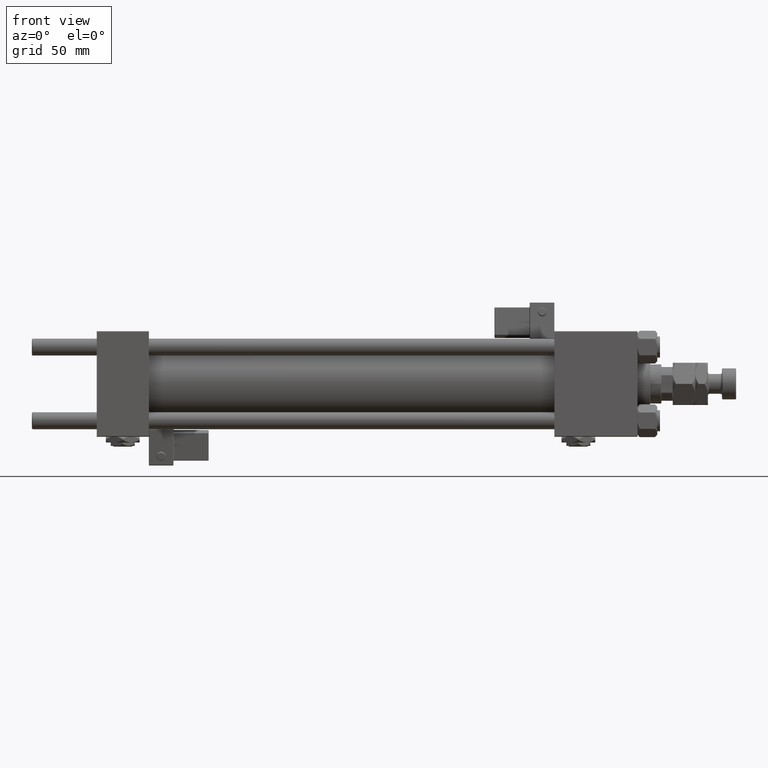
[diagram: clean part render]
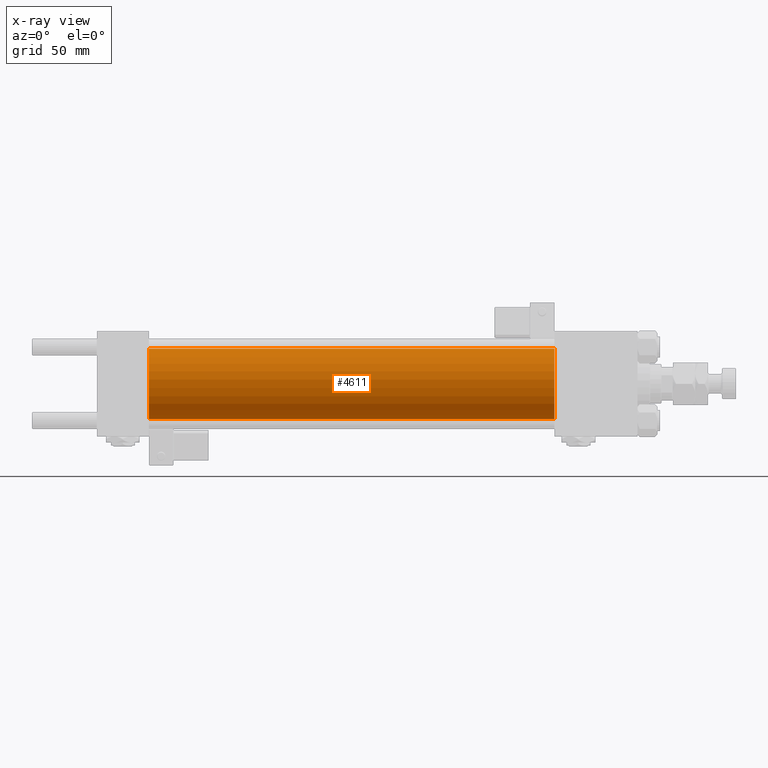
[diagram: x-ray — body ghosted, one internal face saturated and labeled with its STEP entity id]
A machine part, front view, then the same camera in x-ray: the body is ghosted and one INTERNAL B-rep face — a face not visible from any outside direction — is saturated and labeled: STEP entity #4611.
In plain terms, the highlighted cylindrical surface (edge-blend (fillet) strip) has radius 25 mm, axis along (-1, -0, -0).
Its self-contained STEP definition (entity closure, byte-faithful):
#1871 = EDGE_LOOP ( 'NONE', ( #52751, #29552, #13907, #3057 ) ) ;
#2317 = DIRECTION ( 'NONE',  ( 1.000000000000000000, 0.000000000000000000, 0.000000000000000000 ) ) ;
#3057 = ORIENTED_EDGE ( 'NONE', *, *, #50995, .F. ) ;
#4414 = VERTEX_POINT ( 'NONE', #21471 ) ;
#4461 = LINE ( 'NONE', #55397, #28727 ) ;
#4611 = ADVANCED_FACE ( 'NONE', ( #27352 ), #5129, .F. ) ;
#5129 = CYLINDRICAL_SURFACE ( 'NONE', #7177, 25.00000000000000000 ) ;
#6607 = CARTESIAN_POINT ( 'NONE',  ( 37.00000000000000000, 3.061616997868383043E-15, -25.00000000000000000 ) ) ;
#7177 = AXIS2_PLACEMENT_3D ( 'NONE', #30730, #30458, #23146 ) ;
#10334 = CARTESIAN_POINT ( 'NONE',  ( 324.9999999999999432, 0.000000000000000000, 25.00000000000000000 ) ) ;
#10579 = VERTEX_POINT ( 'NONE', #6607 ) ;
#13907 = ORIENTED_EDGE ( 'NONE', *, *, #18802, .F. ) ;
#14962 = LINE ( 'NONE', #15496, #21205 ) ;
#15496 = CARTESIAN_POINT ( 'NONE',  ( 324.9999999999999432, 0.000000000000000000, 25.00000000000000000 ) ) ;
#15810 = EDGE_CURVE ( 'NONE', #51731, #10579, #4461, .T. ) ;
#18802 = EDGE_CURVE ( 'NONE', #4414, #10579, #18996, .T. ) ;
#18996 = CIRCLE ( 'NONE', #26162, 25.00000000000000000 ) ;
#21205 = VECTOR ( 'NONE', #45833, 1000.000000000000000 ) ;
#21471 = CARTESIAN_POINT ( 'NONE',  ( 37.00000000000000000, 0.000000000000000000, 25.00000000000000000 ) ) ;
#23146 = DIRECTION ( 'NONE',  ( 0.000000000000000000, 0.000000000000000000, 1.000000000000000000 ) ) ;
#26162 = AXIS2_PLACEMENT_3D ( 'NONE', #44538, #2317, #40049 ) ;
#26681 = AXIS2_PLACEMENT_3D ( 'NONE', #50217, #49942, #49390 ) ;
#27352 = FACE_OUTER_BOUND ( 'NONE', #1871, .T. ) ;
#28727 = VECTOR ( 'NONE', #38501, 1000.000000000000000 ) ;
#29552 = ORIENTED_EDGE ( 'NONE', *, *, #15810, .T. ) ;
#30458 = DIRECTION ( 'NONE',  ( -1.000000000000000000, -0.000000000000000000, -0.000000000000000000 ) ) ;
#30730 = CARTESIAN_POINT ( 'NONE',  ( 324.9999999999999432, 0.000000000000000000, 0.000000000000000000 ) ) ;
#34168 = EDGE_CURVE ( 'NONE', #34850, #51731, #52710, .T. ) ;
#34850 = VERTEX_POINT ( 'NONE', #10334 ) ;
#37549 = CARTESIAN_POINT ( 'NONE',  ( 324.9999999999999432, 3.061616997868383043E-15, -25.00000000000000000 ) ) ;
#38501 = DIRECTION ( 'NONE',  ( -1.000000000000000000, -0.000000000000000000, -0.000000000000000000 ) ) ;
#40049 = DIRECTION ( 'NONE',  ( 0.000000000000000000, 0.000000000000000000, -1.000000000000000000 ) ) ;
#44538 = CARTESIAN_POINT ( 'NONE',  ( 37.00000000000000000, 0.000000000000000000, 0.000000000000000000 ) ) ;
#45833 = DIRECTION ( 'NONE',  ( -1.000000000000000000, -0.000000000000000000, -0.000000000000000000 ) ) ;
#49390 = DIRECTION ( 'NONE',  ( 0.000000000000000000, 0.000000000000000000, -1.000000000000000000 ) ) ;
#49942 = DIRECTION ( 'NONE',  ( 1.000000000000000000, 0.000000000000000000, 0.000000000000000000 ) ) ;
#50217 = CARTESIAN_POINT ( 'NONE',  ( 324.9999999999999432, 0.000000000000000000, 0.000000000000000000 ) ) ;
#50995 = EDGE_CURVE ( 'NONE', #34850, #4414, #14962, .T. ) ;
#51731 = VERTEX_POINT ( 'NONE', #37549 ) ;
#52710 = CIRCLE ( 'NONE', #26681, 25.00000000000000000 ) ;
#52751 = ORIENTED_EDGE ( 'NONE', *, *, #34168, .T. ) ;
#55397 = CARTESIAN_POINT ( 'NONE',  ( 324.9999999999999432, 3.061616997868383043E-15, -25.00000000000000000 ) ) ;